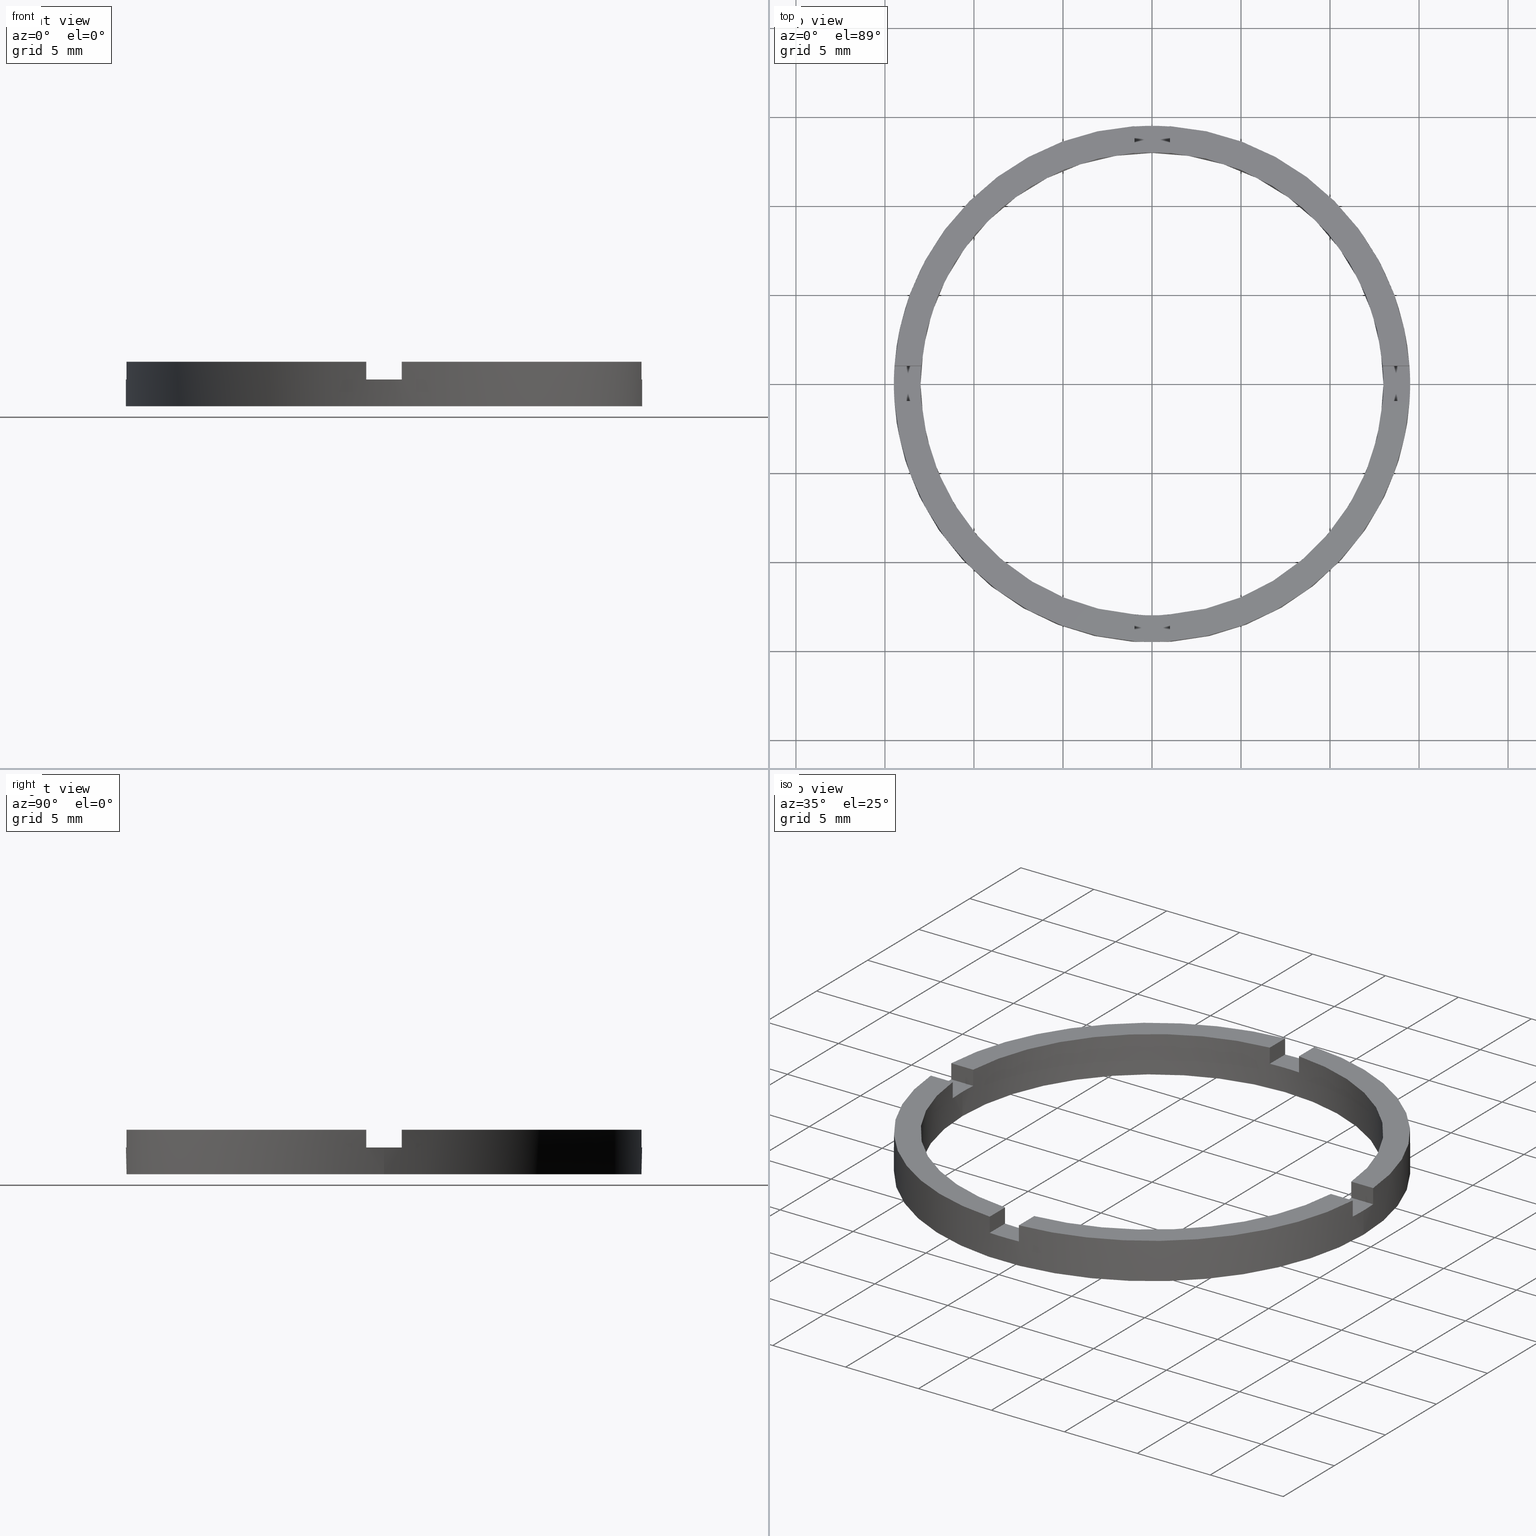
[diagram: canonical four-view strip — front | top / right | iso, engineering-drawing reading convention]
A machine part, canonical four-view strip (front | top / right | iso — engineering-drawing reading convention). The complete STEP part file that produces these views, byte-faithful:
ISO-10303-21;
HEADER;
FILE_DESCRIPTION (( 'STEP AP203' ),
    '1' );
FILE_NAME ('514065.step',
    '2024-12-26T02:34:13',
    ( 'MSI' ),
    ( '' ),
    'SwSTEP 2.0',
    'SolidWorks 2020',
    '' );
FILE_SCHEMA (( 'CONFIG_CONTROL_DESIGN' ));
ENDSEC;

DATA;
#1 = LINE ( 'NONE', #370, #241 ) ;
#2 = DIRECTION ( 'NONE',  ( 1.000000000000000000, 0.000000000000000000, 0.000000000000000000 ) ) ;
#3 = ORIENTED_EDGE ( 'NONE', *, *, #297, .T. ) ;
#4 = PRODUCT_DEFINITION_FORMATION_WITH_SPECIFIED_SOURCE ( '�κ�', '', #56, .NOT_KNOWN. ) ;
#5 = ORIENTED_EDGE ( 'NONE', *, *, #67, .T. ) ;
#6 = ORIENTED_EDGE ( 'NONE', *, *, #137, .T. ) ;
#7 = ORIENTED_EDGE ( 'NONE', *, *, #451, .F. ) ;
#8 = CARTESIAN_POINT ( 'NONE',  ( 0.000000000000000000, 0.000000000000000000, 0.000000000000000000 ) ) ;
#9 = EDGE_CURVE ( 'NONE', #722, #654, #1, .T. ) ;
#10 = ORIENTED_EDGE ( 'NONE', *, *, #697, .T. ) ;
#11 = ORIENTED_EDGE ( 'NONE', *, *, #540, .T. ) ;
#12 = ADVANCED_FACE ( 'NONE', ( #767 ), #36, .F. ) ;
#13 = ORIENTED_EDGE ( 'NONE', *, *, #627, .F. ) ;
#14 = CARTESIAN_POINT ( 'NONE',  ( 0.9999999999999751310, 4.500000000000000888, 1.500000000000000000 ) ) ;
#15 = VERTEX_POINT ( 'NONE', #617 ) ;
#16 = CARTESIAN_POINT ( 'NONE',  ( -12.96148139681571898, -1.000000000000022427, 1.500000000000000000 ) ) ;
#17 = VERTEX_POINT ( 'NONE', #523 ) ;
#18 = DIRECTION ( 'NONE',  ( 1.000000000000000000, 0.000000000000000000, 0.000000000000000000 ) ) ;
#19 = VERTEX_POINT ( 'NONE', #620 ) ;
#20 = ADVANCED_FACE ( 'NONE', ( #505 ), #211, .T. ) ;
#21 = CARTESIAN_POINT ( 'NONE',  ( 13.00000000000000178, 1.592040838891559293E-15, 1.500000000000000000 ) ) ;
#22 = DIRECTION ( 'NONE',  ( 1.000000000000000000, 0.000000000000000000, -0.000000000000000000 ) ) ;
#23 = CARTESIAN_POINT ( 'NONE',  ( -1.000000000000024869, 4.500000000000000888, 1.500000000000000000 ) ) ;
#24 = FACE_OUTER_BOUND ( 'NONE', #666, .T. ) ;
#25 = DIRECTION ( 'NONE',  ( 0.000000000000000000, 0.000000000000000000, -1.000000000000000000 ) ) ;
#26 = VECTOR ( 'NONE', #716, 1000.000000000000000 ) ;
#27 =( NAMED_UNIT ( * ) SI_UNIT ( $, .STERADIAN. ) SOLID_ANGLE_UNIT ( ) );
#28 = DIRECTION ( 'NONE',  ( -0.000000000000000000, -1.000000000000000000, -0.000000000000000000 ) ) ;
#29 = LINE ( 'NONE', #588, #551 ) ;
#30 = VECTOR ( 'NONE', #607, 1000.000000000000000 ) ;
#31 = CIRCLE ( 'NONE', #648, 14.50000000000000000 ) ;
#32 = APPLICATION_PROTOCOL_DEFINITION ( 'international standard', 'config_control_design', 1994, #207 ) ;
#33 = CARTESIAN_POINT ( 'NONE',  ( -12.96148139681572253, 0.9999999999999776845, 2.500000000000000000 ) ) ;
#34 = LINE ( 'NONE', #182, #559 ) ;
#35 = FACE_OUTER_BOUND ( 'NONE', #168, .T. ) ;
#36 = PLANE ( 'NONE',  #331 ) ;
#37 = AXIS2_PLACEMENT_3D ( 'NONE', #550, #91, #2 ) ;
#38 = SECURITY_CLASSIFICATION_LEVEL ( 'unclassified' ) ;
#39 = LINE ( 'NONE', #544, #294 ) ;
#40 = CARTESIAN_POINT ( 'NONE',  ( 0.000000000000000000, 0.000000000000000000, 1.500000000000000000 ) ) ;
#41 = DIRECTION ( 'NONE',  ( 0.000000000000000000, 0.000000000000000000, 1.000000000000000000 ) ) ;
#42 = LINE ( 'NONE', #51, #574 ) ;
#43 = VECTOR ( 'NONE', #28, 1000.000000000000000 ) ;
#44 = VECTOR ( 'NONE', #604, 1000.000000000000000 ) ;
#45 = CARTESIAN_POINT ( 'NONE',  ( 0.000000000000000000, 0.000000000000000000, 0.000000000000000000 ) ) ;
#46 = EDGE_CURVE ( 'NONE', #165, #382, #257, .T. ) ;
#47 = LINE ( 'NONE', #63, #295 ) ;
#48 = DIRECTION ( 'NONE',  ( 0.000000000000000000, 0.000000000000000000, 1.000000000000000000 ) ) ;
#49 = CIRCLE ( 'NONE', #412, 13.00000000000000178 ) ;
#50 = DIRECTION ( 'NONE',  ( 1.000000000000000000, 0.000000000000000000, -0.000000000000000000 ) ) ;
#51 = CARTESIAN_POINT ( 'NONE',  ( -1.000000000000164313, -4.500000000000181188, 1.500000000000000000 ) ) ;
#52 = DIRECTION ( 'NONE',  ( 1.000000000000000000, 0.000000000000000000, -0.000000000000000000 ) ) ;
#53 = LINE ( 'NONE', #474, #26 ) ;
#54 = VECTOR ( 'NONE', #364, 1000.000000000000000 ) ;
#55 = LINE ( 'NONE', #220, #304 ) ;
#56 = PRODUCT ( '514065', '514065', '', ( #682 ) ) ;
#57 = EDGE_CURVE ( 'NONE', #698, #108, #237, .T. ) ;
#58 = AXIS2_PLACEMENT_3D ( 'NONE', #40, #315, #323 ) ;
#59 = CARTESIAN_POINT ( 'NONE',  ( 0.000000000000000000, 0.000000000000000000, 2.500000000000000000 ) ) ;
#60 = DIRECTION ( 'NONE',  ( 1.000000000000000000, 0.000000000000000000, 0.000000000000000000 ) ) ;
#61 = AXIS2_PLACEMENT_3D ( 'NONE', #59, #62, #332 ) ;
#62 = DIRECTION ( 'NONE',  ( 0.000000000000000000, 0.000000000000000000, 1.000000000000000000 ) ) ;
#63 = CARTESIAN_POINT ( 'NONE',  ( 0.9999999999998356870, -4.500000000000181188, 1.500000000000000000 ) ) ;
#64 = DIRECTION ( 'NONE',  ( 1.000000000000000000, 0.000000000000000000, 0.000000000000000000 ) ) ;
#65 = ADVANCED_FACE ( 'NONE', ( #779 ), #251, .T. ) ;
#66 = CARTESIAN_POINT ( 'NONE',  ( -4.500000000000186517, 0.9999999999999790168, 2.500000000000000000 ) ) ;
#67 = EDGE_CURVE ( 'NONE', #178, #695, #503, .T. ) ;
#68 = EDGE_CURVE ( 'NONE', #654, #260, #526, .T. ) ;
#69 = DIRECTION ( 'NONE',  ( 1.734723475976807094E-16, -1.000000000000000000, 0.000000000000000000 ) ) ;
#70 = DIRECTION ( 'NONE',  ( 1.000000000000000000, 0.000000000000000000, 0.000000000000000000 ) ) ;
#71 = ADVANCED_FACE ( 'NONE', ( #530, #768 ), #317, .F. ) ;
#72 = DIRECTION ( 'NONE',  ( -0.000000000000000000, 0.000000000000000000, 1.000000000000000000 ) ) ;
#73 = EDGE_CURVE ( 'NONE', #688, #19, #235, .T. ) ;
#74 = DIRECTION ( 'NONE',  ( 1.000000000000000000, -0.000000000000000000, 0.000000000000000000 ) ) ;
#75 = APPROVAL_ROLE ( '' ) ;
#76 = APPLICATION_CONTEXT ( 'configuration controlled 3d designs of mechanical parts and assemblies' ) ;
#77 = PLANE ( 'NONE',  #349 ) ;
#78 = CARTESIAN_POINT ( 'NONE',  ( 0.9999999999999751310, 14.46547614148943417, 2.500000000000000000 ) ) ;
#79 = DIRECTION ( 'NONE',  ( -0.000000000000000000, -0.000000000000000000, -1.000000000000000000 ) ) ;
#80 = PERSON_AND_ORGANIZATION ( #287, #144 ) ;
#81 = AXIS2_PLACEMENT_3D ( 'NONE', #306, #191, #341 ) ;
#82 = DIRECTION ( 'NONE',  ( 0.000000000000000000, 0.000000000000000000, 1.000000000000000000 ) ) ;
#83 = CC_DESIGN_APPROVAL ( #757, ( #630 ) ) ;
#84 = AXIS2_PLACEMENT_3D ( 'NONE', #498, #487, #236 ) ;
#85 = EDGE_CURVE ( 'NONE', #140, #134, #501, .T. ) ;
#86 = EDGE_CURVE ( 'NONE', #197, #382, #776, .T. ) ;
#87 = DIRECTION ( 'NONE',  ( 0.000000000000000000, 0.000000000000000000, 1.000000000000000000 ) ) ;
#88 = PERSON_AND_ORGANIZATION ( #287, #144 ) ;
#89 = LOCAL_TIME ( 10, 34, 13.00000000000000000, #613 ) ;
#90 = CARTESIAN_POINT ( 'NONE',  ( 0.000000000000000000, 0.000000000000000000, 1.500000000000000000 ) ) ;
#91 = DIRECTION ( 'NONE',  ( 0.000000000000000000, 0.000000000000000000, 1.000000000000000000 ) ) ;
#92 = PLANE ( 'NONE',  #313 ) ;
#93 = CARTESIAN_POINT ( 'NONE',  ( -1.000000000000024869, 12.96148139681571898, 2.500000000000000000 ) ) ;
#94 = PRODUCT_DEFINITION_SHAPE ( 'NONE', 'NONE',  #334 ) ;
#95 = APPROVAL_DATE_TIME ( #342, #252 ) ;
#96 = DIRECTION ( 'NONE',  ( 1.000000000000000000, 4.336808689942017736E-17, 0.000000000000000000 ) ) ;
#97 = DIRECTION ( 'NONE',  ( -1.301042606982605321E-16, 1.000000000000000000, -0.000000000000000000 ) ) ;
#98 = PLANE ( 'NONE',  #81 ) ;
#99 = EDGE_CURVE ( 'NONE', #636, #466, #771, .T. ) ;
#100 = DIRECTION ( 'NONE',  ( -1.000000000000000000, -1.734723475976807094E-16, 0.000000000000000000 ) ) ;
#101 = CARTESIAN_POINT ( 'NONE',  ( 14.50000000000000000, 1.775737858763662015E-15, 1.500000000000000000 ) ) ;
#102 = AXIS2_PLACEMENT_3D ( 'NONE', #314, #417, #606 ) ;
#103 = DIRECTION ( 'NONE',  ( 0.000000000000000000, 0.000000000000000000, 1.000000000000000000 ) ) ;
#104 = EDGE_CURVE ( 'NONE', #17, #442, #180, .T. ) ;
#105 = CARTESIAN_POINT ( 'NONE',  ( 0.9999999999998366862, -12.96148139681573497, 2.500000000000000000 ) ) ;
#106 = EDGE_CURVE ( 'NONE', #688, #466, #192, .T. ) ;
#107 = CARTESIAN_POINT ( 'NONE',  ( 0.9999999999998356870, -4.500000000000181188, 2.500000000000000000 ) ) ;
#108 = VERTEX_POINT ( 'NONE', #324 ) ;
#109 = CC_DESIGN_APPROVAL ( #252, ( #4 ) ) ;
#110 = DIRECTION ( 'NONE',  ( 1.000000000000000000, 0.000000000000000000, 0.000000000000000000 ) ) ;
#111 = CARTESIAN_POINT ( 'NONE',  ( -4.500000000000186517, 0.9999999999999790168, 1.500000000000000000 ) ) ;
#112 = AXIS2_PLACEMENT_3D ( 'NONE', #300, #204, #742 ) ;
#113 = ORIENTED_EDGE ( 'NONE', *, *, #9, .T. ) ;
#114 = VERTEX_POINT ( 'NONE', #562 ) ;
#115 = APPROVAL_DATE_TIME ( #124, #480 ) ;
#116 = ORIENTED_EDGE ( 'NONE', *, *, #320, .F. ) ;
#117 = VERTEX_POINT ( 'NONE', #702 ) ;
#118 = CIRCLE ( 'NONE', #275, 14.50000000000000000 ) ;
#119 = ORIENTED_EDGE ( 'NONE', *, *, #362, .F. ) ;
#120 = CARTESIAN_POINT ( 'NONE',  ( 0.9999999999999751310, 12.96148139681572431, 2.500000000000000000 ) ) ;
#121 = AXIS2_PLACEMENT_3D ( 'NONE', #348, #72, #321 ) ;
#122 = ORIENTED_EDGE ( 'NONE', *, *, #621, .T. ) ;
#123 = ORIENTED_EDGE ( 'NONE', *, *, #734, .F. ) ;
#124 = DATE_AND_TIME ( #639, #372 ) ;
#125 = ORIENTED_EDGE ( 'NONE', *, *, #228, .F. ) ;
#126 = EDGE_LOOP ( 'NONE', ( #136, #421, #6, #271, #434, #657, #189, #132, #450, #13, #538, #532 ) ) ;
#127 = CARTESIAN_POINT ( 'NONE',  ( 0.000000000000000000, 0.000000000000000000, 2.500000000000000000 ) ) ;
#128 = ORIENTED_EDGE ( 'NONE', *, *, #594, .T. ) ;
#129 = ORIENTED_EDGE ( 'NONE', *, *, #399, .T. ) ;
#130 = CC_DESIGN_DATE_AND_TIME_ASSIGNMENT ( #709, #518, ( #630 ) ) ;
#131 = CARTESIAN_POINT ( 'NONE',  ( -12.96148139681571898, -1.000000000000022427, 2.500000000000000000 ) ) ;
#132 = ORIENTED_EDGE ( 'NONE', *, *, #67, .F. ) ;
#133 = LOCAL_TIME ( 10, 34, 13.00000000000000000, #135 ) ;
#134 = VERTEX_POINT ( 'NONE', #352 ) ;
#135 = COORDINATED_UNIVERSAL_TIME_OFFSET ( 8, 0, .AHEAD. ) ;
#136 = ORIENTED_EDGE ( 'NONE', *, *, #46, .F. ) ;
#137 = EDGE_CURVE ( 'NONE', #139, #134, #687, .T. ) ;
#138 = PERSON_AND_ORGANIZATION ( #287, #144 ) ;
#139 = VERTEX_POINT ( 'NONE', #361 ) ;
#140 = VERTEX_POINT ( 'NONE', #443 ) ;
#141 = CARTESIAN_POINT ( 'NONE',  ( 14.50000000000000000, 1.775737858763662015E-15, 0.000000000000000000 ) ) ;
#142 = COORDINATED_UNIVERSAL_TIME_OFFSET ( 8, 0, .AHEAD. ) ;
#143 = EDGE_LOOP ( 'NONE', ( #10, #711, #420, #384 ) ) ;
#144 = ORGANIZATION ( 'δָ��', 'δָ��', '' ) ;
#145 = VERTEX_POINT ( 'NONE', #612 ) ;
#146 = VERTEX_POINT ( 'NONE', #453 ) ;
#147 = ORIENTED_EDGE ( 'NONE', *, *, #85, .F. ) ;
#148 = ORIENTED_EDGE ( 'NONE', *, *, #99, .T. ) ;
#149 = ORIENTED_EDGE ( 'NONE', *, *, #201, .T. ) ;
#150 = ORIENTED_EDGE ( 'NONE', *, *, #585, .F. ) ;
#151 = DIRECTION ( 'NONE',  ( 1.000000000000000000, 1.734723475976807094E-16, -0.000000000000000000 ) ) ;
#152 = ORIENTED_EDGE ( 'NONE', *, *, #286, .F. ) ;
#153 = ORIENTED_EDGE ( 'NONE', *, *, #451, .T. ) ;
#154 = ORIENTED_EDGE ( 'NONE', *, *, #169, .F. ) ;
#155 = EDGE_LOOP ( 'NONE', ( #404, #149, #153, #152, #119, #129 ) ) ;
#156 = FACE_OUTER_BOUND ( 'NONE', #537, .T. ) ;
#157 = ORIENTED_EDGE ( 'NONE', *, *, #104, .T. ) ;
#158 = EDGE_CURVE ( 'NONE', #117, #645, #449, .T. ) ;
#159 = ORIENTED_EDGE ( 'NONE', *, *, #201, .F. ) ;
#160 = VERTEX_POINT ( 'NONE', #608 ) ;
#161 = ORIENTED_EDGE ( 'NONE', *, *, #399, .F. ) ;
#162 = VECTOR ( 'NONE', #41, 1000.000000000000000 ) ;
#163 = ORIENTED_EDGE ( 'NONE', *, *, #621, .F. ) ;
#164 = ORIENTED_EDGE ( 'NONE', *, *, #723, .F. ) ;
#165 = VERTEX_POINT ( 'NONE', #101 ) ;
#166 = ORIENTED_EDGE ( 'NONE', *, *, #594, .F. ) ;
#167 = ORIENTED_EDGE ( 'NONE', *, *, #462, .F. ) ;
#168 = EDGE_LOOP ( 'NONE', ( #232, #651, #265, #649 ) ) ;
#169 = EDGE_CURVE ( 'NONE', #531, #678, #717, .T. ) ;
#170 = ORIENTED_EDGE ( 'NONE', *, *, #286, .T. ) ;
#171 = ORIENTED_EDGE ( 'NONE', *, *, #367, .T. ) ;
#172 = EDGE_LOOP ( 'NONE', ( #708, #430, #681, #485, #226, #157 ) ) ;
#173 = AXIS2_PLACEMENT_3D ( 'NONE', #418, #493, #781 ) ;
#174 = CARTESIAN_POINT ( 'NONE',  ( 0.000000000000000000, 0.000000000000000000, 2.500000000000000000 ) ) ;
#175 = CLOSED_SHELL ( 'NONE', ( #343, #303, #405, #659, #751, #548, #71, #65, #250, #600, #339, #243, #311, #635, #20, #195, #307, #203, #433, #12, #186 ) ) ;
#176 = ORIENTED_EDGE ( 'NONE', *, *, #482, .F. ) ;
#177 = ORIENTED_EDGE ( 'NONE', *, *, #234, .T. ) ;
#178 = VERTEX_POINT ( 'NONE', #328 ) ;
#179 = CC_DESIGN_PERSON_AND_ORGANIZATION_ASSIGNMENT ( #335, #266, ( #630 ) ) ;
#180 = LINE ( 'NONE', #213, #446 ) ;
#181 = VERTEX_POINT ( 'NONE', #586 ) ;
#182 = CARTESIAN_POINT ( 'NONE',  ( -1.000000000000163203, -12.96148139681570832, 2.500000000000000000 ) ) ;
#183 = DIRECTION ( 'NONE',  ( -0.000000000000000000, -0.000000000000000000, -1.000000000000000000 ) ) ;
#184 = ORIENTED_EDGE ( 'NONE', *, *, #782, .T. ) ;
#185 = APPROVAL_DATE_TIME ( #661, #757 ) ;
#186 = ADVANCED_FACE ( 'NONE', ( #444 ), #223, .T. ) ;
#187 = SHAPE_DEFINITION_REPRESENTATION ( #94, #360 ) ;
#188 = PLANE ( 'NONE',  #603 ) ;
#189 = ORIENTED_EDGE ( 'NONE', *, *, #655, .T. ) ;
#190 = CARTESIAN_POINT ( 'NONE',  ( 0.000000000000000000, 0.000000000000000000, 1.500000000000000000 ) ) ;
#191 = DIRECTION ( 'NONE',  ( -4.336808689942017736E-17, 1.000000000000000000, 0.000000000000000000 ) ) ;
#192 = CIRCLE ( 'NONE', #504, 13.00000000000000178 ) ;
#193 = VERTEX_POINT ( 'NONE', #467 ) ;
#194 = CC_DESIGN_APPROVAL ( #480, ( #334 ) ) ;
#195 = ADVANCED_FACE ( 'NONE', ( #156 ), #98, .F. ) ;
#196 = VECTOR ( 'NONE', #199, 1000.000000000000000 ) ;
#197 = VERTEX_POINT ( 'NONE', #245 ) ;
#198 = CARTESIAN_POINT ( 'NONE',  ( -12.96148139681572253, 0.9999999999999776845, 2.500000000000000000 ) ) ;
#199 = DIRECTION ( 'NONE',  ( -0.000000000000000000, -1.000000000000000000, -0.000000000000000000 ) ) ;
#200 = EDGE_LOOP ( 'NONE', ( #699, #11, #269, #677 ) ) ;
#201 = EDGE_CURVE ( 'NONE', #165, #423, #413, .T. ) ;
#202 = CIRCLE ( 'NONE', #354, 13.00000000000000178 ) ;
#203 = ADVANCED_FACE ( 'NONE', ( #685 ), #92, .T. ) ;
#204 = DIRECTION ( 'NONE',  ( 0.000000000000000000, 0.000000000000000000, 1.000000000000000000 ) ) ;
#205 = DIRECTION ( 'NONE',  ( -0.000000000000000000, -0.000000000000000000, -1.000000000000000000 ) ) ;
#206 = AXIS2_PLACEMENT_3D ( 'NONE', #326, #629, #283 ) ;
#207 = APPLICATION_CONTEXT ( 'configuration controlled 3d designs of mechanical parts and assemblies' ) ;
#208 = CARTESIAN_POINT ( 'NONE',  ( 4.499999999999995559, 0.9999999999998402389, 1.500000000000000000 ) ) ;
#209 = AXIS2_PLACEMENT_3D ( 'NONE', #393, #336, #543 ) ;
#210 = DESIGN_CONTEXT ( 'detailed design', #76, 'design' ) ;
#211 = PLANE ( 'NONE',  #121 ) ;
#212 = CARTESIAN_POINT ( 'NONE',  ( 0.000000000000000000, 0.000000000000000000, 2.500000000000000000 ) ) ;
#213 = CARTESIAN_POINT ( 'NONE',  ( -4.500000000000186517, 0.9999999999999790168, 1.500000000000000000 ) ) ;
#214 = AXIS2_PLACEMENT_3D ( 'NONE', #520, #579, #665 ) ;
#215 = FACE_OUTER_BOUND ( 'NONE', #172, .T. ) ;
#216 = ORIENTED_EDGE ( 'NONE', *, *, #9, .F. ) ;
#217 = VECTOR ( 'NONE', #713, 1000.000000000000000 ) ;
#218 = APPROVAL_STATUS ( 'not_yet_approved' ) ;
#219 = EDGE_CURVE ( 'NONE', #442, #160, #752, .T. ) ;
#220 = CARTESIAN_POINT ( 'NONE',  ( -4.500000000000186517, -1.000000000000021094, 2.500000000000000000 ) ) ;
#221 = CIRCLE ( 'NONE', #753, 13.00000000000000178 ) ;
#222 = CARTESIAN_POINT ( 'NONE',  ( 0.9999999999998366862, -12.96148139681573497, 1.500000000000000000 ) ) ;
#223 = PLANE ( 'NONE',  #724 ) ;
#224 = CYLINDRICAL_SURFACE ( 'NONE', #238, 13.00000000000000178 ) ;
#225 = CIRCLE ( 'NONE', #541, 13.00000000000000178 ) ;
#226 = ORIENTED_EDGE ( 'NONE', *, *, #770, .F. ) ;
#227 = DIRECTION ( 'NONE',  ( -1.000000000000000000, 0.000000000000000000, 0.000000000000000000 ) ) ;
#228 = EDGE_CURVE ( 'NONE', #117, #688, #473, .T. ) ;
#229 = CIRCLE ( 'NONE', #58, 14.50000000000000000 ) ;
#230 = CARTESIAN_POINT ( 'NONE',  ( 0.000000000000000000, 0.000000000000000000, 2.500000000000000000 ) ) ;
#231 = VECTOR ( 'NONE', #694, 1000.000000000000000 ) ;
#232 = ORIENTED_EDGE ( 'NONE', *, *, #581, .F. ) ;
#233 = LINE ( 'NONE', #208, #497 ) ;
#234 = EDGE_CURVE ( 'NONE', #636, #678, #225, .T. ) ;
#235 = LINE ( 'NONE', #347, #512 ) ;
#236 = DIRECTION ( 'NONE',  ( 1.000000000000000000, 0.000000000000000000, -0.000000000000000000 ) ) ;
#237 = LINE ( 'NONE', #107, #248 ) ;
#238 = AXIS2_PLACEMENT_3D ( 'NONE', #301, #79, #227 ) ;
#239 = DIRECTION ( 'NONE',  ( -0.000000000000000000, -0.000000000000000000, -1.000000000000000000 ) ) ;
#240 = VERTEX_POINT ( 'NONE', #396 ) ;
#241 = VECTOR ( 'NONE', #584, 1000.000000000000000 ) ;
#242 = CARTESIAN_POINT ( 'NONE',  ( 0.9999999999998356870, -4.500000000000181188, 1.500000000000000000 ) ) ;
#243 = ADVANCED_FACE ( 'NONE', ( #215 ), #280, .T. ) ;
#244 = DIRECTION ( 'NONE',  ( 0.000000000000000000, 0.000000000000000000, 1.000000000000000000 ) ) ;
#245 = CARTESIAN_POINT ( 'NONE',  ( -14.50000000000000000, 0.000000000000000000, 0.000000000000000000 ) ) ;
#246 = EDGE_LOOP ( 'NONE', ( #216, #170, #426, #750, #755, #177, #719, #642, #486, #721, #424, #381 ) ) ;
#247 = EDGE_CURVE ( 'NONE', #114, #678, #454, .T. ) ;
#248 = VECTOR ( 'NONE', #517, 1000.000000000000000 ) ;
#249 = AXIS2_PLACEMENT_3D ( 'NONE', #127, #565, #258 ) ;
#250 = ADVANCED_FACE ( 'NONE', ( #457 ), #224, .F. ) ;
#251 = CYLINDRICAL_SURFACE ( 'NONE', #249, 14.50000000000000000 ) ;
#252 = APPROVAL ( #359, 'δָ��' ) ;
#253 = CARTESIAN_POINT ( 'NONE',  ( -1.000000000000162981, -14.46547614148942174, 2.500000000000000000 ) ) ;
#254 = CARTESIAN_POINT ( 'NONE',  ( 0.000000000000000000, 0.000000000000000000, 2.500000000000000000 ) ) ;
#255 = ORIENTED_EDGE ( 'NONE', *, *, #104, .F. ) ;
#256 = EDGE_CURVE ( 'NONE', #146, #260, #733, .T. ) ;
#257 = LINE ( 'NONE', #357, #521 ) ;
#258 = DIRECTION ( 'NONE',  ( -1.000000000000000000, 0.000000000000000000, 0.000000000000000000 ) ) ;
#259 = ORIENTED_EDGE ( 'NONE', *, *, #73, .T. ) ;
#260 = VERTEX_POINT ( 'NONE', #553 ) ;
#261 =( NAMED_UNIT ( * ) PLANE_ANGLE_UNIT ( ) SI_UNIT ( $, .RADIAN. ) );
#262 = CARTESIAN_POINT ( 'NONE',  ( 0.9999999999999751310, 12.96148139681572431, 2.500000000000000000 ) ) ;
#263 = DIRECTION ( 'NONE',  ( 0.000000000000000000, 0.000000000000000000, 1.000000000000000000 ) ) ;
#264 = ORIENTED_EDGE ( 'NONE', *, *, #85, .T. ) ;
#265 = ORIENTED_EDGE ( 'NONE', *, *, #499, .T. ) ;
#266 = PERSON_AND_ORGANIZATION_ROLE ( 'classification_officer' ) ;
#267 = ORIENTED_EDGE ( 'NONE', *, *, #367, .F. ) ;
#268 = DIRECTION ( 'NONE',  ( 0.000000000000000000, 0.000000000000000000, 1.000000000000000000 ) ) ;
#269 = ORIENTED_EDGE ( 'NONE', *, *, #782, .F. ) ;
#270 = EDGE_CURVE ( 'NONE', #698, #778, #475, .T. ) ;
#271 = ORIENTED_EDGE ( 'NONE', *, *, #344, .F. ) ;
#272 = DIRECTION ( 'NONE',  ( 1.000000000000000000, 0.000000000000000000, 0.000000000000000000 ) ) ;
#273 = ORIENTED_EDGE ( 'NONE', *, *, #344, .T. ) ;
#274 = DIRECTION ( 'NONE',  ( 1.000000000000000000, 1.734723475976807094E-16, -0.000000000000000000 ) ) ;
#275 = AXIS2_PLACEMENT_3D ( 'NONE', #754, #673, #110 ) ;
#276 = CARTESIAN_POINT ( 'NONE',  ( 4.499999999999995559, -1.000000000000159872, 1.500000000000000000 ) ) ;
#277 = CARTESIAN_POINT ( 'NONE',  ( 0.000000000000000000, 0.000000000000000000, 1.500000000000000000 ) ) ;
#278 = EDGE_CURVE ( 'NONE', #146, #653, #221, .T. ) ;
#279 = LINE ( 'NONE', #105, #290 ) ;
#280 = PLANE ( 'NONE',  #571 ) ;
#281 = FACE_OUTER_BOUND ( 'NONE', #445, .T. ) ;
#282 = VECTOR ( 'NONE', #458, 1000.000000000000000 ) ;
#283 = DIRECTION ( 'NONE',  ( 1.000000000000000000, 0.000000000000000000, -0.000000000000000000 ) ) ;
#284 = FACE_OUTER_BOUND ( 'NONE', #690, .T. ) ;
#285 = DIRECTION ( 'NONE',  ( 1.000000000000000000, 0.000000000000000000, -0.000000000000000000 ) ) ;
#286 = EDGE_CURVE ( 'NONE', #722, #19, #202, .T. ) ;
#287 = PERSON ( 'δָ��', 'δָ��', 'δָ��', ('δָ��'), ('δָ��'), ('δָ��') ) ;
#288 = CIRCLE ( 'NONE', #358, 13.00000000000000178 ) ;
#289 = AXIS2_PLACEMENT_3D ( 'NONE', #746, #602, #64 ) ;
#290 = VECTOR ( 'NONE', #205, 1000.000000000000000 ) ;
#291 = LINE ( 'NONE', #441, #282 ) ;
#292 = CIRCLE ( 'NONE', #112, 14.50000000000000000 ) ;
#293 = LINE ( 'NONE', #253, #44 ) ;
#294 = VECTOR ( 'NONE', #633, 1000.000000000000000 ) ;
#295 = VECTOR ( 'NONE', #97, 1000.000000000000000 ) ;
#296 = DIRECTION ( 'NONE',  ( 0.000000000000000000, 0.000000000000000000, 1.000000000000000000 ) ) ;
#297 = EDGE_CURVE ( 'NONE', #459, #671, #739, .T. ) ;
#298 = CIRCLE ( 'NONE', #37, 14.50000000000000000 ) ;
#299 = VECTOR ( 'NONE', #710, 1000.000000000000000 ) ;
#300 = CARTESIAN_POINT ( 'NONE',  ( 0.000000000000000000, 0.000000000000000000, 1.500000000000000000 ) ) ;
#301 = CARTESIAN_POINT ( 'NONE',  ( 0.000000000000000000, 0.000000000000000000, 2.500000000000000000 ) ) ;
#302 = LINE ( 'NONE', #756, #43 ) ;
#303 = ADVANCED_FACE ( 'NONE', ( #477 ), #468, .T. ) ;
#304 = VECTOR ( 'NONE', #274, 1000.000000000000000 ) ;
#305 = DIRECTION ( 'NONE',  ( 1.000000000000000000, 1.301042606982605321E-16, 0.000000000000000000 ) ) ;
#306 = CARTESIAN_POINT ( 'NONE',  ( 4.499999999999995559, 0.9999999999998402389, 1.500000000000000000 ) ) ;
#307 = ADVANCED_FACE ( 'NONE', ( #461 ), #638, .F. ) ;
#308 = DIRECTION ( 'NONE',  ( 4.336808689942017736E-17, -1.000000000000000000, 0.000000000000000000 ) ) ;
#309 = AXIS2_PLACEMENT_3D ( 'NONE', #337, #592, #346 ) ;
#310 = DIRECTION ( 'NONE',  ( 1.301042606982605321E-16, -1.000000000000000000, 0.000000000000000000 ) ) ;
#311 = ADVANCED_FACE ( 'NONE', ( #745 ), #188, .F. ) ;
#312 = CARTESIAN_POINT ( 'NONE',  ( 0.000000000000000000, 0.000000000000000000, 1.500000000000000000 ) ) ;
#313 = AXIS2_PLACEMENT_3D ( 'NONE', #407, #87, #285 ) ;
#314 = CARTESIAN_POINT ( 'NONE',  ( 0.000000000000000000, 0.000000000000000000, 1.500000000000000000 ) ) ;
#315 = DIRECTION ( 'NONE',  ( 0.000000000000000000, 0.000000000000000000, 1.000000000000000000 ) ) ;
#316 = DIRECTION ( 'NONE',  ( -0.000000000000000000, -0.000000000000000000, -1.000000000000000000 ) ) ;
#317 = PLANE ( 'NONE',  #464 ) ;
#318 = DIRECTION ( 'NONE',  ( -1.000000000000000000, -1.734723475976807094E-16, 0.000000000000000000 ) ) ;
#319 = DIRECTION ( 'NONE',  ( 1.000000000000000000, 0.000000000000000000, -0.000000000000000000 ) ) ;
#320 = EDGE_CURVE ( 'NONE', #636, #240, #740, .T. ) ;
#321 = DIRECTION ( 'NONE',  ( 1.000000000000000000, 0.000000000000000000, 0.000000000000000000 ) ) ;
#322 = PERSON_AND_ORGANIZATION_ROLE ( 'creator' ) ;
#323 = DIRECTION ( 'NONE',  ( 1.000000000000000000, 0.000000000000000000, 0.000000000000000000 ) ) ;
#324 = CARTESIAN_POINT ( 'NONE',  ( 0.9999999999998366862, -12.96148139681573497, 2.500000000000000000 ) ) ;
#325 = CARTESIAN_POINT ( 'NONE',  ( -1.000000000000162981, -14.46547614148942174, 1.500000000000000000 ) ) ;
#326 = CARTESIAN_POINT ( 'NONE',  ( 0.000000000000000000, 0.000000000000000000, 2.500000000000000000 ) ) ;
#327 = DIRECTION ( 'NONE',  ( 0.000000000000000000, -0.000000000000000000, 1.000000000000000000 ) ) ;
#328 = CARTESIAN_POINT ( 'NONE',  ( -14.46547614148943062, -1.000000000000022871, 2.500000000000000000 ) ) ;
#329 = AXIS2_PLACEMENT_3D ( 'NONE', #774, #69, #748 ) ;
#330 = DIRECTION ( 'NONE',  ( 0.000000000000000000, 0.000000000000000000, 1.000000000000000000 ) ) ;
#331 = AXIS2_PLACEMENT_3D ( 'NONE', #366, #74, #25 ) ;
#332 = DIRECTION ( 'NONE',  ( 1.000000000000000000, 0.000000000000000000, 0.000000000000000000 ) ) ;
#333 = PLANE ( 'NONE',  #598 ) ;
#334 = PRODUCT_DEFINITION ( 'δ֪', '', #4, #210 ) ;
#335 = PERSON_AND_ORGANIZATION ( #287, #144 ) ;
#336 = DIRECTION ( 'NONE',  ( -0.000000000000000000, -0.000000000000000000, -1.000000000000000000 ) ) ;
#337 = CARTESIAN_POINT ( 'NONE',  ( 0.000000000000000000, 0.000000000000000000, 1.500000000000000000 ) ) ;
#338 = EDGE_CURVE ( 'NONE', #114, #371, #463, .T. ) ;
#339 = ADVANCED_FACE ( 'NONE', ( #744 ), #575, .F. ) ;
#340 = CARTESIAN_POINT ( 'NONE',  ( 12.96148139681570832, -1.000000000000159428, 1.500000000000000000 ) ) ;
#341 = DIRECTION ( 'NONE',  ( -1.000000000000000000, -4.336808689942017736E-17, 0.000000000000000000 ) ) ;
#342 = DATE_AND_TIME ( #345, #628 ) ;
#343 = ADVANCED_FACE ( 'NONE', ( #484 ), #731, .F. ) ;
#344 = EDGE_CURVE ( 'NONE', #698, #134, #735, .T. ) ;
#345 = CALENDAR_DATE ( 2024, 26, 12 ) ;
#346 = DIRECTION ( 'NONE',  ( 1.000000000000000000, 0.000000000000000000, 0.000000000000000000 ) ) ;
#347 = CARTESIAN_POINT ( 'NONE',  ( 12.96148139681573497, 0.9999999999998406830, 2.500000000000000000 ) ) ;
#348 = CARTESIAN_POINT ( 'NONE',  ( 0.000000000000000000, 0.000000000000000000, 1.500000000000000000 ) ) ;
#349 = AXIS2_PLACEMENT_3D ( 'NONE', #212, #268, #22 ) ;
#350 = CARTESIAN_POINT ( 'NONE',  ( -14.46547614148943062, -1.000000000000022871, 2.500000000000000000 ) ) ;
#351 = DIRECTION ( 'NONE',  ( 0.000000000000000000, 0.000000000000000000, 1.000000000000000000 ) ) ;
#352 = CARTESIAN_POINT ( 'NONE',  ( 14.46547614148942174, -1.000000000000159428, 2.500000000000000000 ) ) ;
#353 = CARTESIAN_POINT ( 'NONE',  ( 0.000000000000000000, 0.000000000000000000, 0.000000000000000000 ) ) ;
#354 = AXIS2_PLACEMENT_3D ( 'NONE', #312, #737, #741 ) ;
#355 = DIRECTION ( 'NONE',  ( -0.000000000000000000, -0.000000000000000000, -1.000000000000000000 ) ) ;
#356 = CARTESIAN_POINT ( 'NONE',  ( 4.499999999999995559, -1.000000000000159872, 2.500000000000000000 ) ) ;
#357 = CARTESIAN_POINT ( 'NONE',  ( 14.50000000000000000, 1.775737858763662015E-15, 2.500000000000000000 ) ) ;
#358 = AXIS2_PLACEMENT_3D ( 'NONE', #230, #82, #529 ) ;
#359 = APPROVAL_STATUS ( 'not_yet_approved' ) ;
#360 = ADVANCED_BREP_SHAPE_REPRESENTATION ( '514065', ( #777, #747 ), #577 ) ;
#361 = CARTESIAN_POINT ( 'NONE',  ( 14.46547614148942174, -1.000000000000159428, 1.500000000000000000 ) ) ;
#362 = EDGE_CURVE ( 'NONE', #686, #722, #736, .T. ) ;
#363 = AXIS2_PLACEMENT_3D ( 'NONE', #511, #580, #18 ) ;
#364 = DIRECTION ( 'NONE',  ( -0.000000000000000000, -0.000000000000000000, -1.000000000000000000 ) ) ;
#365 = DIRECTION ( 'NONE',  ( 1.000000000000000000, 4.336808689942017736E-17, 0.000000000000000000 ) ) ;
#366 = CARTESIAN_POINT ( 'NONE',  ( 0.9999999999999751310, 4.500000000000000888, 1.500000000000000000 ) ) ;
#367 = EDGE_CURVE ( 'NONE', #240, #645, #472, .T. ) ;
#368 = ORIENTED_EDGE ( 'NONE', *, *, #137, .F. ) ;
#369 = CARTESIAN_POINT ( 'NONE',  ( -13.00000000000000178, 0.000000000000000000, 2.500000000000000000 ) ) ;
#370 = CARTESIAN_POINT ( 'NONE',  ( 13.00000000000000178, 1.592040838891559293E-15, 2.500000000000000000 ) ) ;
#371 = VERTEX_POINT ( 'NONE', #33 ) ;
#372 = LOCAL_TIME ( 10, 34, 13.00000000000000000, #386 ) ;
#373 = PLANE ( 'NONE',  #206 ) ;
#374 = ORIENTED_EDGE ( 'NONE', *, *, #158, .T. ) ;
#375 = ORIENTED_EDGE ( 'NONE', *, *, #581, .T. ) ;
#376 = ORIENTED_EDGE ( 'NONE', *, *, #761, .F. ) ;
#377 = DIRECTION ( 'NONE',  ( 1.000000000000000000, 0.000000000000000000, 0.000000000000000000 ) ) ;
#378 = VECTOR ( 'NONE', #100, 1000.000000000000000 ) ;
#379 = EDGE_LOOP ( 'NONE', ( #663, #676, #163, #375 ) ) ;
#380 = ORIENTED_EDGE ( 'NONE', *, *, #499, .F. ) ;
#381 = ORIENTED_EDGE ( 'NONE', *, *, #68, .F. ) ;
#382 = VERTEX_POINT ( 'NONE', #141 ) ;
#383 = VERTEX_POINT ( 'NONE', #222 ) ;
#384 = ORIENTED_EDGE ( 'NONE', *, *, #320, .T. ) ;
#385 = CARTESIAN_POINT ( 'NONE',  ( 4.499999999999995559, 0.9999999999998402389, 2.500000000000000000 ) ) ;
#386 = COORDINATED_UNIVERSAL_TIME_OFFSET ( 8, 0, .AHEAD. ) ;
#387 = ORIENTED_EDGE ( 'NONE', *, *, #601, .T. ) ;
#388 = APPROVAL_PERSON_ORGANIZATION ( #432, #757, #75 ) ;
#389 = CALENDAR_DATE ( 2024, 26, 12 ) ;
#390 = EDGE_LOOP ( 'NONE', ( #408, #672, #154, #398 ) ) ;
#391 = PERSON_AND_ORGANIZATION ( #287, #144 ) ;
#392 = ORIENTED_EDGE ( 'NONE', *, *, #761, .T. ) ;
#393 = CARTESIAN_POINT ( 'NONE',  ( 0.000000000000000000, 0.000000000000000000, 2.500000000000000000 ) ) ;
#394 = APPROVAL_PERSON_ORGANIZATION ( #138, #252, #456 ) ;
#395 = DIRECTION ( 'NONE',  ( 1.000000000000000000, 0.000000000000000000, -0.000000000000000000 ) ) ;
#396 = CARTESIAN_POINT ( 'NONE',  ( 0.9999999999999751310, 14.46547614148943417, 1.500000000000000000 ) ) ;
#397 = ORIENTED_EDGE ( 'NONE', *, *, #593, .F. ) ;
#398 = ORIENTED_EDGE ( 'NONE', *, *, #513, .F. ) ;
#399 = EDGE_CURVE ( 'NONE', #686, #139, #764, .T. ) ;
#400 = ORIENTED_EDGE ( 'NONE', *, *, #57, .F. ) ;
#401 = ORIENTED_EDGE ( 'NONE', *, *, #46, .T. ) ;
#402 = DIRECTION ( 'NONE',  ( 1.000000000000000000, 0.000000000000000000, 0.000000000000000000 ) ) ;
#403 = VERTEX_POINT ( 'NONE', #325 ) ;
#404 = ORIENTED_EDGE ( 'NONE', *, *, #609, .T. ) ;
#405 = ADVANCED_FACE ( 'NONE', ( #488 ), #77, .T. ) ;
#406 = CARTESIAN_POINT ( 'NONE',  ( -1.000000000000164313, -4.500000000000181188, 1.500000000000000000 ) ) ;
#407 = CARTESIAN_POINT ( 'NONE',  ( 0.000000000000000000, 0.000000000000000000, 1.500000000000000000 ) ) ;
#408 = ORIENTED_EDGE ( 'NONE', *, *, #547, .T. ) ;
#409 = ORIENTED_EDGE ( 'NONE', *, *, #297, .F. ) ;
#410 = CC_DESIGN_SECURITY_CLASSIFICATION ( #630, ( #4 ) ) ;
#411 = EDGE_LOOP ( 'NONE', ( #161, #536, #264, #368 ) ) ;
#412 = AXIS2_PLACEMENT_3D ( 'NONE', #190, #492, #554 ) ;
#413 = CIRCLE ( 'NONE', #173, 14.50000000000000000 ) ;
#414 = ORIENTED_EDGE ( 'NONE', *, *, #462, .T. ) ;
#415 = APPROVAL_ROLE ( '' ) ;
#416 = ORIENTED_EDGE ( 'NONE', *, *, #697, .F. ) ;
#417 = DIRECTION ( 'NONE',  ( 0.000000000000000000, -0.000000000000000000, 1.000000000000000000 ) ) ;
#418 = CARTESIAN_POINT ( 'NONE',  ( 0.000000000000000000, 0.000000000000000000, 1.500000000000000000 ) ) ;
#419 = ORIENTED_EDGE ( 'NONE', *, *, #533, .T. ) ;
#420 = ORIENTED_EDGE ( 'NONE', *, *, #234, .F. ) ;
#421 = ORIENTED_EDGE ( 'NONE', *, *, #609, .F. ) ;
#422 = EDGE_CURVE ( 'NONE', #442, #15, #229, .T. ) ;
#423 = VERTEX_POINT ( 'NONE', #428 ) ;
#424 = ORIENTED_EDGE ( 'NONE', *, *, #256, .T. ) ;
#425 = EDGE_LOOP ( 'NONE', ( #669, #113, #123, #637, #435, #431, #3, #700, #122, #476, #707, #397 ) ) ;
#426 = ORIENTED_EDGE ( 'NONE', *, *, #73, .F. ) ;
#427 = CARTESIAN_POINT ( 'NONE',  ( 0.9999999999999751310, 14.46547614148943417, 2.500000000000000000 ) ) ;
#428 = CARTESIAN_POINT ( 'NONE',  ( 14.46547614148944483, 0.9999999999998406830, 1.500000000000000000 ) ) ;
#429 = EDGE_LOOP ( 'NONE', ( #159, #401, #679, #176, #634, #667, #670, #437, #416, #171, #646, #392 ) ) ;
#430 = ORIENTED_EDGE ( 'NONE', *, *, #627, .T. ) ;
#431 = ORIENTED_EDGE ( 'NONE', *, *, #438, .F. ) ;
#432 = PERSON_AND_ORGANIZATION ( #287, #144 ) ;
#433 = ADVANCED_FACE ( 'NONE', ( #491 ), #611, .F. ) ;
#434 = ORIENTED_EDGE ( 'NONE', *, *, #270, .T. ) ;
#435 = ORIENTED_EDGE ( 'NONE', *, *, #278, .T. ) ;
#436 = DIRECTION ( 'NONE',  ( 0.000000000000000000, 0.000000000000000000, 1.000000000000000000 ) ) ;
#437 = ORIENTED_EDGE ( 'NONE', *, *, #513, .T. ) ;
#438 = EDGE_CURVE ( 'NONE', #459, #653, #489, .T. ) ;
#439 = CARTESIAN_POINT ( 'NONE',  ( -1.000000000000024869, 12.96148139681571898, 1.500000000000000000 ) ) ;
#440 = VECTOR ( 'NONE', #569, 1000.000000000000000 ) ;
#441 = CARTESIAN_POINT ( 'NONE',  ( -1.000000000000164313, -4.500000000000181188, 2.500000000000000000 ) ) ;
#442 = VERTEX_POINT ( 'NONE', #765 ) ;
#443 = CARTESIAN_POINT ( 'NONE',  ( 12.96148139681570832, -1.000000000000159428, 2.500000000000000000 ) ) ;
#444 = FACE_OUTER_BOUND ( 'NONE', #143, .T. ) ;
#445 = EDGE_LOOP ( 'NONE', ( #147, #150, #400, #273 ) ) ;
#446 = VECTOR ( 'NONE', #522, 1000.000000000000000 ) ;
#447 = COORDINATED_UNIVERSAL_TIME_OFFSET ( 8, 0, .AHEAD. ) ;
#448 = CARTESIAN_POINT ( 'NONE',  ( 0.000000000000000000, 0.000000000000000000, 2.500000000000000000 ) ) ;
#449 = CIRCLE ( 'NONE', #363, 14.50000000000000000 ) ;
#450 = ORIENTED_EDGE ( 'NONE', *, *, #723, .T. ) ;
#451 = EDGE_CURVE ( 'NONE', #423, #19, #233, .T. ) ;
#452 = DIRECTION ( 'NONE',  ( 0.000000000000000000, 0.000000000000000000, 1.000000000000000000 ) ) ;
#453 = CARTESIAN_POINT ( 'NONE',  ( -13.00000000000000178, 0.000000000000000000, 1.500000000000000000 ) ) ;
#454 = LINE ( 'NONE', #93, #479 ) ;
#455 = AXIS2_PLACEMENT_3D ( 'NONE', #515, #615, #510 ) ;
#456 = APPROVAL_ROLE ( '' ) ;
#457 = FACE_OUTER_BOUND ( 'NONE', #246, .T. ) ;
#458 = DIRECTION ( 'NONE',  ( 1.301042606982605321E-16, -1.000000000000000000, 0.000000000000000000 ) ) ;
#459 = VERTEX_POINT ( 'NONE', #131 ) ;
#460 = DIRECTION ( 'NONE',  ( 0.000000000000000000, 0.000000000000000000, 1.000000000000000000 ) ) ;
#461 = FACE_OUTER_BOUND ( 'NONE', #411, .T. ) ;
#462 = EDGE_CURVE ( 'NONE', #178, #459, #55, .T. ) ;
#463 = CIRCLE ( 'NONE', #289, 13.00000000000000178 ) ;
#464 = AXIS2_PLACEMENT_3D ( 'NONE', #353, #263, #319 ) ;
#465 = CARTESIAN_POINT ( 'NONE',  ( 12.96148139681570832, -1.000000000000159428, 2.500000000000000000 ) ) ;
#466 = VERTEX_POINT ( 'NONE', #262 ) ;
#467 = CARTESIAN_POINT ( 'NONE',  ( -1.000000000000163203, -12.96148139681570832, 1.500000000000000000 ) ) ;
#468 = CYLINDRICAL_SURFACE ( 'NONE', #209, 14.50000000000000000 ) ;
#469 = CC_DESIGN_PERSON_AND_ORGANIZATION_ASSIGNMENT ( #656, #322, ( #334 ) ) ;
#470 = VECTOR ( 'NONE', #658, 1000.000000000000000 ) ;
#471 = AXIS2_PLACEMENT_3D ( 'NONE', #568, #48, #683 ) ;
#472 = LINE ( 'NONE', #78, #494 ) ;
#473 = LINE ( 'NONE', #385, #483 ) ;
#474 = CARTESIAN_POINT ( 'NONE',  ( 0.9999999999999751310, 4.500000000000000888, 2.500000000000000000 ) ) ;
#475 = LINE ( 'NONE', #647, #470 ) ;
#476 = ORIENTED_EDGE ( 'NONE', *, *, #533, .F. ) ;
#477 = FACE_OUTER_BOUND ( 'NONE', #429, .T. ) ;
#478 = CARTESIAN_POINT ( 'NONE',  ( 0.000000000000000000, 0.000000000000000000, 1.500000000000000000 ) ) ;
#479 = VECTOR ( 'NONE', #183, 1000.000000000000000 ) ;
#480 = APPROVAL ( #566, 'δָ��' ) ;
#481 = DIRECTION ( 'NONE',  ( 0.000000000000000000, -0.000000000000000000, 1.000000000000000000 ) ) ;
#482 = EDGE_CURVE ( 'NONE', #15, #197, #576, .T. ) ;
#483 = VECTOR ( 'NONE', #772, 1000.000000000000000 ) ;
#484 = FACE_OUTER_BOUND ( 'NONE', #425, .T. ) ;
#485 = ORIENTED_EDGE ( 'NONE', *, *, #278, .F. ) ;
#486 = ORIENTED_EDGE ( 'NONE', *, *, #601, .F. ) ;
#487 = DIRECTION ( 'NONE',  ( 0.000000000000000000, 0.000000000000000000, 1.000000000000000000 ) ) ;
#488 = FACE_OUTER_BOUND ( 'NONE', #200, .T. ) ;
#489 = LINE ( 'NONE', #618, #231 ) ;
#490 = DIRECTION ( 'NONE',  ( -1.301042606982605321E-16, 1.000000000000000000, 0.000000000000000000 ) ) ;
#491 = FACE_OUTER_BOUND ( 'NONE', #390, .T. ) ;
#492 = DIRECTION ( 'NONE',  ( 0.000000000000000000, 0.000000000000000000, 1.000000000000000000 ) ) ;
#493 = DIRECTION ( 'NONE',  ( 0.000000000000000000, 0.000000000000000000, 1.000000000000000000 ) ) ;
#494 = VECTOR ( 'NONE', #452, 1000.000000000000000 ) ;
#495 = VECTOR ( 'NONE', #622, 1000.000000000000000 ) ;
#496 = AXIS2_PLACEMENT_3D ( 'NONE', #8, #296, #60 ) ;
#497 = VECTOR ( 'NONE', #500, 1000.000000000000000 ) ;
#498 = CARTESIAN_POINT ( 'NONE',  ( 0.000000000000000000, 0.000000000000000000, 2.500000000000000000 ) ) ;
#499 = EDGE_CURVE ( 'NONE', #671, #695, #291, .T. ) ;
#500 = DIRECTION ( 'NONE',  ( -1.000000000000000000, -4.336808689942017736E-17, -0.000000000000000000 ) ) ;
#501 = LINE ( 'NONE', #356, #508 ) ;
#502 = DIRECTION ( 'NONE',  ( 1.000000000000000000, 0.000000000000000000, 0.000000000000000000 ) ) ;
#503 = CIRCLE ( 'NONE', #624, 14.50000000000000000 ) ;
#504 = AXIS2_PLACEMENT_3D ( 'NONE', #766, #460, #623 ) ;
#505 = FACE_OUTER_BOUND ( 'NONE', #379, .T. ) ;
#506 = DIRECTION ( 'NONE',  ( 1.000000000000000000, 0.000000000000000000, 0.000000000000000000 ) ) ;
#507 = CARTESIAN_POINT ( 'NONE',  ( 4.499999999999995559, -1.000000000000159872, 1.500000000000000000 ) ) ;
#508 = VECTOR ( 'NONE', #365, 1000.000000000000000 ) ;
#509 = APPLICATION_PROTOCOL_DEFINITION ( 'international standard', 'config_control_design', 1994, #76 ) ;
#510 = DIRECTION ( 'NONE',  ( 1.000000000000000000, 0.000000000000000000, 0.000000000000000000 ) ) ;
#511 = CARTESIAN_POINT ( 'NONE',  ( 0.000000000000000000, 0.000000000000000000, 2.500000000000000000 ) ) ;
#512 = VECTOR ( 'NONE', #316, 1000.000000000000000 ) ;
#513 = EDGE_CURVE ( 'NONE', #181, #531, #557, .T. ) ;
#514 = CARTESIAN_POINT ( 'NONE',  ( 0.000000000000000000, 0.000000000000000000, 0.000000000000000000 ) ) ;
#515 = CARTESIAN_POINT ( 'NONE',  ( 0.000000000000000000, 0.000000000000000000, 2.500000000000000000 ) ) ;
#516 = CARTESIAN_POINT ( 'NONE',  ( 0.000000000000000000, 0.000000000000000000, 0.000000000000000000 ) ) ;
#517 = DIRECTION ( 'NONE',  ( -1.301042606982605321E-16, 1.000000000000000000, -0.000000000000000000 ) ) ;
#518 = DATE_TIME_ROLE ( 'classification_date' ) ;
#519 = ORIENTED_EDGE ( 'NONE', *, *, #762, .F. ) ;
#520 = CARTESIAN_POINT ( 'NONE',  ( -1.000000000000024869, 4.500000000000000888, 1.500000000000000000 ) ) ;
#521 = VECTOR ( 'NONE', #558, 1000.000000000000000 ) ;
#522 = DIRECTION ( 'NONE',  ( -1.000000000000000000, -1.734723475976807094E-16, 0.000000000000000000 ) ) ;
#523 = CARTESIAN_POINT ( 'NONE',  ( -12.96148139681572253, 0.9999999999999776845, 1.500000000000000000 ) ) ;
#524 = EDGE_CURVE ( 'NONE', #382, #197, #31, .T. ) ;
#525 = CARTESIAN_POINT ( 'NONE',  ( 0.000000000000000000, 0.000000000000000000, 0.000000000000000000 ) ) ;
#526 = CIRCLE ( 'NONE', #712, 13.00000000000000178 ) ;
#527 = AXIS2_PLACEMENT_3D ( 'NONE', #254, #351, #674 ) ;
#528 = ORIENTED_EDGE ( 'NONE', *, *, #57, .T. ) ;
#529 = DIRECTION ( 'NONE',  ( 1.000000000000000000, 0.000000000000000000, 0.000000000000000000 ) ) ;
#530 = FACE_OUTER_BOUND ( 'NONE', #729, .T. ) ;
#531 = VERTEX_POINT ( 'NONE', #769 ) ;
#532 = ORIENTED_EDGE ( 'NONE', *, *, #86, .T. ) ;
#533 = EDGE_CURVE ( 'NONE', #108, #383, #279, .T. ) ;
#534 = ORIENTED_EDGE ( 'NONE', *, *, #106, .F. ) ;
#535 = DIRECTION ( 'NONE',  ( 1.301042606982605321E-16, -1.000000000000000000, 0.000000000000000000 ) ) ;
#536 = ORIENTED_EDGE ( 'NONE', *, *, #593, .T. ) ;
#537 = EDGE_LOOP ( 'NONE', ( #644, #259, #7, #376 ) ) ;
#538 = ORIENTED_EDGE ( 'NONE', *, *, #482, .T. ) ;
#539 = EDGE_LOOP ( 'NONE', ( #528, #419, #519, #726 ) ) ;
#540 = EDGE_CURVE ( 'NONE', #181, #160, #567, .T. ) ;
#541 = AXIS2_PLACEMENT_3D ( 'NONE', #478, #481, #377 ) ;
#542 = PLANE ( 'NONE',  #84 ) ;
#543 = DIRECTION ( 'NONE',  ( -1.000000000000000000, 0.000000000000000000, 0.000000000000000000 ) ) ;
#544 = CARTESIAN_POINT ( 'NONE',  ( 14.46547614148944483, 0.9999999999998406830, 2.500000000000000000 ) ) ;
#545 = LINE ( 'NONE', #198, #552 ) ;
#546 = CIRCLE ( 'NONE', #102, 14.50000000000000000 ) ;
#547 = EDGE_CURVE ( 'NONE', #181, #114, #302, .T. ) ;
#548 = ADVANCED_FACE ( 'NONE', ( #284 ), #373, .T. ) ;
#549 = LINE ( 'NONE', #66, #378 ) ;
#550 = CARTESIAN_POINT ( 'NONE',  ( 0.000000000000000000, 0.000000000000000000, 1.500000000000000000 ) ) ;
#551 = VECTOR ( 'NONE', #151, 1000.000000000000000 ) ;
#552 = VECTOR ( 'NONE', #244, 1000.000000000000000 ) ;
#553 = CARTESIAN_POINT ( 'NONE',  ( -13.00000000000000178, 0.000000000000000000, 0.000000000000000000 ) ) ;
#554 = DIRECTION ( 'NONE',  ( 1.000000000000000000, 0.000000000000000000, 0.000000000000000000 ) ) ;
#555 = CIRCLE ( 'NONE', #309, 13.00000000000000178 ) ;
#556 = VECTOR ( 'NONE', #239, 1000.000000000000000 ) ;
#557 = LINE ( 'NONE', #701, #30 ) ;
#558 = DIRECTION ( 'NONE',  ( -0.000000000000000000, -0.000000000000000000, -1.000000000000000000 ) ) ;
#559 = VECTOR ( 'NONE', #727, 1000.000000000000000 ) ;
#560 = CIRCLE ( 'NONE', #496, 13.00000000000000178 ) ;
#561 = CARTESIAN_POINT ( 'NONE',  ( -14.50000000000000000, 0.000000000000000000, 2.500000000000000000 ) ) ;
#562 = CARTESIAN_POINT ( 'NONE',  ( -1.000000000000024869, 12.96148139681571898, 2.500000000000000000 ) ) ;
#563 = LINE ( 'NONE', #465, #299 ) ;
#564 = LINE ( 'NONE', #350, #556 ) ;
#565 = DIRECTION ( 'NONE',  ( -0.000000000000000000, -0.000000000000000000, -1.000000000000000000 ) ) ;
#566 = APPROVAL_STATUS ( 'not_yet_approved' ) ;
#567 = CIRCLE ( 'NONE', #527, 14.50000000000000000 ) ;
#568 = CARTESIAN_POINT ( 'NONE',  ( 0.000000000000000000, 0.000000000000000000, 1.500000000000000000 ) ) ;
#569 = DIRECTION ( 'NONE',  ( 0.000000000000000000, 0.000000000000000000, 1.000000000000000000 ) ) ;
#570 = FACE_OUTER_BOUND ( 'NONE', #703, .T. ) ;
#571 = AXIS2_PLACEMENT_3D ( 'NONE', #589, #728, #50 ) ;
#572 = PRODUCT_RELATED_PRODUCT_CATEGORY ( 'detail', '', ( #56 ) ) ;
#573 =( LENGTH_UNIT ( ) NAMED_UNIT ( * ) SI_UNIT ( .MILLI., .METRE. ) );
#574 = VECTOR ( 'NONE', #535, 1000.000000000000000 ) ;
#575 = PLANE ( 'NONE',  #718 ) ;
#576 = LINE ( 'NONE', #561, #54 ) ;
#577 =( GEOMETRIC_REPRESENTATION_CONTEXT ( 3 ) GLOBAL_UNCERTAINTY_ASSIGNED_CONTEXT ( ( #587 ) ) GLOBAL_UNIT_ASSIGNED_CONTEXT ( ( #573, #261, #27 ) ) REPRESENTATION_CONTEXT ( 'NONE', 'WORKASPACE' ) );
#578 = DATE_TIME_ROLE ( 'creation_date' ) ;
#579 = DIRECTION ( 'NONE',  ( -1.000000000000000000, 0.000000000000000000, 0.000000000000000000 ) ) ;
#580 = DIRECTION ( 'NONE',  ( 0.000000000000000000, 0.000000000000000000, 1.000000000000000000 ) ) ;
#581 = EDGE_CURVE ( 'NONE', #193, #403, #42, .T. ) ;
#582 = CC_DESIGN_DATE_AND_TIME_ASSIGNMENT ( #662, #578, ( #334 ) ) ;
#583 = DIRECTION ( 'NONE',  ( 0.000000000000000000, 0.000000000000000000, 1.000000000000000000 ) ) ;
#584 = DIRECTION ( 'NONE',  ( -0.000000000000000000, -0.000000000000000000, -1.000000000000000000 ) ) ;
#585 = EDGE_CURVE ( 'NONE', #108, #140, #288, .T. ) ;
#586 = CARTESIAN_POINT ( 'NONE',  ( -1.000000000000024869, 14.46547614148943062, 2.500000000000000000 ) ) ;
#587 = UNCERTAINTY_MEASURE_WITH_UNIT (LENGTH_MEASURE( 1.000000000000000082E-05 ), #573, 'distance_accuracy_value', 'NONE');
#588 = CARTESIAN_POINT ( 'NONE',  ( -4.500000000000186517, -1.000000000000021094, 1.500000000000000000 ) ) ;
#589 = CARTESIAN_POINT ( 'NONE',  ( 0.000000000000000000, 0.000000000000000000, 1.500000000000000000 ) ) ;
#590 = EDGE_CURVE ( 'NONE', #145, #653, #29, .T. ) ;
#591 = DIRECTION ( 'NONE',  ( 0.000000000000000000, 1.000000000000000000, 0.000000000000000000 ) ) ;
#592 = DIRECTION ( 'NONE',  ( -0.000000000000000000, 0.000000000000000000, 1.000000000000000000 ) ) ;
#593 = EDGE_CURVE ( 'NONE', #686, #140, #563, .T. ) ;
#594 = EDGE_CURVE ( 'NONE', #466, #645, #53, .T. ) ;
#595 = CARTESIAN_POINT ( 'NONE',  ( 0.9999999999999751310, 12.96148139681572431, 1.500000000000000000 ) ) ;
#596 = CARTESIAN_POINT ( 'NONE',  ( -14.46547614148943417, 0.9999999999999772404, 2.500000000000000000 ) ) ;
#597 = CC_DESIGN_PERSON_AND_ORGANIZATION_ASSIGNMENT ( #88, #692, ( #4 ) ) ;
#598 = AXIS2_PLACEMENT_3D ( 'NONE', #174, #103, #395 ) ;
#599 = CARTESIAN_POINT ( 'NONE',  ( -1.000000000000162981, -14.46547614148942174, 2.500000000000000000 ) ) ;
#600 = ADVANCED_FACE ( 'NONE', ( #24 ), #626, .F. ) ;
#601 = EDGE_CURVE ( 'NONE', #17, #371, #545, .T. ) ;
#602 = DIRECTION ( 'NONE',  ( 0.000000000000000000, 0.000000000000000000, 1.000000000000000000 ) ) ;
#603 = AXIS2_PLACEMENT_3D ( 'NONE', #242, #305, #490 ) ;
#604 = DIRECTION ( 'NONE',  ( 0.000000000000000000, 0.000000000000000000, 1.000000000000000000 ) ) ;
#605 = CARTESIAN_POINT ( 'NONE',  ( 0.000000000000000000, 0.000000000000000000, 2.500000000000000000 ) ) ;
#606 = DIRECTION ( 'NONE',  ( 1.000000000000000000, 0.000000000000000000, 0.000000000000000000 ) ) ;
#607 = DIRECTION ( 'NONE',  ( -0.000000000000000000, -0.000000000000000000, -1.000000000000000000 ) ) ;
#608 = CARTESIAN_POINT ( 'NONE',  ( -14.46547614148943417, 0.9999999999999772404, 2.500000000000000000 ) ) ;
#609 = EDGE_CURVE ( 'NONE', #139, #165, #292, .T. ) ;
#610 = DIRECTION ( 'NONE',  ( 0.000000000000000000, 0.000000000000000000, 1.000000000000000000 ) ) ;
#611 = PLANE ( 'NONE',  #214 ) ;
#612 = CARTESIAN_POINT ( 'NONE',  ( -14.46547614148943062, -1.000000000000022871, 1.500000000000000000 ) ) ;
#613 = COORDINATED_UNIVERSAL_TIME_OFFSET ( 8, 0, .AHEAD. ) ;
#614 = DIRECTION ( 'NONE',  ( 1.000000000000000000, 0.000000000000000000, 0.000000000000000000 ) ) ;
#615 = DIRECTION ( 'NONE',  ( 0.000000000000000000, 0.000000000000000000, 1.000000000000000000 ) ) ;
#616 = EDGE_CURVE ( 'NONE', #193, #671, #34, .T. ) ;
#617 = CARTESIAN_POINT ( 'NONE',  ( -14.50000000000000000, 0.000000000000000000, 1.500000000000000000 ) ) ;
#618 = CARTESIAN_POINT ( 'NONE',  ( -12.96148139681571898, -1.000000000000022427, 2.500000000000000000 ) ) ;
#619 = CALENDAR_DATE ( 2024, 26, 12 ) ;
#620 = CARTESIAN_POINT ( 'NONE',  ( 12.96148139681573497, 0.9999999999998406830, 1.500000000000000000 ) ) ;
#621 = EDGE_CURVE ( 'NONE', #193, #383, #555, .T. ) ;
#622 = DIRECTION ( 'NONE',  ( 1.000000000000000000, 4.336808689942017736E-17, 0.000000000000000000 ) ) ;
#623 = DIRECTION ( 'NONE',  ( 1.000000000000000000, 0.000000000000000000, 0.000000000000000000 ) ) ;
#624 = AXIS2_PLACEMENT_3D ( 'NONE', #605, #689, #272 ) ;
#625 = CC_DESIGN_PERSON_AND_ORGANIZATION_ASSIGNMENT ( #80, #763, ( #4 ) ) ;
#626 = PLANE ( 'NONE',  #329 ) ;
#627 = EDGE_CURVE ( 'NONE', #15, #145, #298, .T. ) ;
#628 = LOCAL_TIME ( 10, 34, 13.00000000000000000, #142 ) ;
#629 = DIRECTION ( 'NONE',  ( 0.000000000000000000, 0.000000000000000000, 1.000000000000000000 ) ) ;
#630 = SECURITY_CLASSIFICATION ( '', '', #38 ) ;
#631 = DIRECTION ( 'NONE',  ( 0.000000000000000000, 0.000000000000000000, 1.000000000000000000 ) ) ;
#632 = CARTESIAN_POINT ( 'NONE',  ( 0.9999999999998369082, -14.46547614148944483, 2.500000000000000000 ) ) ;
#633 = DIRECTION ( 'NONE',  ( -0.000000000000000000, -0.000000000000000000, -1.000000000000000000 ) ) ;
#634 = ORIENTED_EDGE ( 'NONE', *, *, #422, .F. ) ;
#635 = ADVANCED_FACE ( 'NONE', ( #35 ), #738, .F. ) ;
#636 = VERTEX_POINT ( 'NONE', #595 ) ;
#637 = ORIENTED_EDGE ( 'NONE', *, *, #256, .F. ) ;
#638 = PLANE ( 'NONE',  #640 ) ;
#639 = CALENDAR_DATE ( 2024, 26, 12 ) ;
#640 = AXIS2_PLACEMENT_3D ( 'NONE', #507, #308, #96 ) ;
#641 = CARTESIAN_POINT ( 'NONE',  ( 12.96148139681573497, 0.9999999999998406830, 2.500000000000000000 ) ) ;
#642 = ORIENTED_EDGE ( 'NONE', *, *, #338, .T. ) ;
#643 = PERSON_AND_ORGANIZATION ( #287, #144 ) ;
#644 = ORIENTED_EDGE ( 'NONE', *, *, #228, .T. ) ;
#645 = VERTEX_POINT ( 'NONE', #427 ) ;
#646 = ORIENTED_EDGE ( 'NONE', *, *, #158, .F. ) ;
#647 = CARTESIAN_POINT ( 'NONE',  ( 0.9999999999998369082, -14.46547614148944483, 2.500000000000000000 ) ) ;
#648 = AXIS2_PLACEMENT_3D ( 'NONE', #525, #583, #70 ) ;
#649 = ORIENTED_EDGE ( 'NONE', *, *, #655, .F. ) ;
#650 = CARTESIAN_POINT ( 'NONE',  ( 0.9999999999998369082, -14.46547614148944483, 1.500000000000000000 ) ) ;
#651 = ORIENTED_EDGE ( 'NONE', *, *, #616, .T. ) ;
#652 = APPROVAL_PERSON_ORGANIZATION ( #391, #480, #415 ) ;
#653 = VERTEX_POINT ( 'NONE', #16 ) ;
#654 = VERTEX_POINT ( 'NONE', #664 ) ;
#655 = EDGE_CURVE ( 'NONE', #403, #695, #293, .T. ) ;
#656 = PERSON_AND_ORGANIZATION ( #287, #144 ) ;
#657 = ORIENTED_EDGE ( 'NONE', *, *, #783, .F. ) ;
#658 = DIRECTION ( 'NONE',  ( -0.000000000000000000, -0.000000000000000000, -1.000000000000000000 ) ) ;
#659 = ADVANCED_FACE ( 'NONE', ( #570 ), #542, .T. ) ;
#660 = AXIS2_PLACEMENT_3D ( 'NONE', #516, #684, #502 ) ;
#661 = DATE_AND_TIME ( #720, #714 ) ;
#662 = DATE_AND_TIME ( #389, #133 ) ;
#663 = ORIENTED_EDGE ( 'NONE', *, *, #783, .T. ) ;
#664 = CARTESIAN_POINT ( 'NONE',  ( 13.00000000000000178, 1.592040838891559293E-15, 0.000000000000000000 ) ) ;
#665 = DIRECTION ( 'NONE',  ( 0.000000000000000000, 0.000000000000000000, 1.000000000000000000 ) ) ;
#666 = EDGE_LOOP ( 'NONE', ( #414, #775, #696, #164 ) ) ;
#667 = ORIENTED_EDGE ( 'NONE', *, *, #219, .T. ) ;
#668 = CC_DESIGN_PERSON_AND_ORGANIZATION_ASSIGNMENT ( #643, #759, ( #56 ) ) ;
#669 = ORIENTED_EDGE ( 'NONE', *, *, #362, .T. ) ;
#670 = ORIENTED_EDGE ( 'NONE', *, *, #540, .F. ) ;
#671 = VERTEX_POINT ( 'NONE', #780 ) ;
#672 = ORIENTED_EDGE ( 'NONE', *, *, #247, .T. ) ;
#673 = DIRECTION ( 'NONE',  ( -0.000000000000000000, 0.000000000000000000, 1.000000000000000000 ) ) ;
#674 = DIRECTION ( 'NONE',  ( 1.000000000000000000, 0.000000000000000000, 0.000000000000000000 ) ) ;
#675 = CARTESIAN_POINT ( 'NONE',  ( 14.46547614148942174, -1.000000000000159428, 2.500000000000000000 ) ) ;
#676 = ORIENTED_EDGE ( 'NONE', *, *, #762, .T. ) ;
#677 = ORIENTED_EDGE ( 'NONE', *, *, #338, .F. ) ;
#678 = VERTEX_POINT ( 'NONE', #439 ) ;
#679 = ORIENTED_EDGE ( 'NONE', *, *, #524, .T. ) ;
#680 = ORIENTED_EDGE ( 'NONE', *, *, #524, .F. ) ;
#681 = ORIENTED_EDGE ( 'NONE', *, *, #590, .T. ) ;
#682 = MECHANICAL_CONTEXT ( 'NONE', #207, 'mechanical' ) ;
#683 = DIRECTION ( 'NONE',  ( 1.000000000000000000, 0.000000000000000000, 0.000000000000000000 ) ) ;
#684 = DIRECTION ( 'NONE',  ( 0.000000000000000000, 0.000000000000000000, 1.000000000000000000 ) ) ;
#685 = FACE_OUTER_BOUND ( 'NONE', #155, .T. ) ;
#686 = VERTEX_POINT ( 'NONE', #340 ) ;
#687 = LINE ( 'NONE', #675, #440 ) ;
#688 = VERTEX_POINT ( 'NONE', #641 ) ;
#689 = DIRECTION ( 'NONE',  ( 0.000000000000000000, 0.000000000000000000, 1.000000000000000000 ) ) ;
#690 = EDGE_LOOP ( 'NONE', ( #380, #409, #167, #5 ) ) ;
#691 = ORIENTED_EDGE ( 'NONE', *, *, #219, .F. ) ;
#692 = PERSON_AND_ORGANIZATION_ROLE ( 'creator' ) ;
#693 = ORIENTED_EDGE ( 'NONE', *, *, #86, .F. ) ;
#694 = DIRECTION ( 'NONE',  ( -0.000000000000000000, -0.000000000000000000, -1.000000000000000000 ) ) ;
#695 = VERTEX_POINT ( 'NONE', #599 ) ;
#696 = ORIENTED_EDGE ( 'NONE', *, *, #590, .F. ) ;
#697 = EDGE_CURVE ( 'NONE', #240, #531, #546, .T. ) ;
#698 = VERTEX_POINT ( 'NONE', #632 ) ;
#699 = ORIENTED_EDGE ( 'NONE', *, *, #547, .F. ) ;
#700 = ORIENTED_EDGE ( 'NONE', *, *, #616, .F. ) ;
#701 = CARTESIAN_POINT ( 'NONE',  ( -1.000000000000024869, 14.46547614148943062, 2.500000000000000000 ) ) ;
#702 = CARTESIAN_POINT ( 'NONE',  ( 14.46547614148944483, 0.9999999999998406830, 2.500000000000000000 ) ) ;
#703 = EDGE_LOOP ( 'NONE', ( #166, #534, #125, #374 ) ) ;
#704 = EDGE_LOOP ( 'NONE', ( #715, #725 ) ) ;
#705 = AXIS2_PLACEMENT_3D ( 'NONE', #448, #355, #749 ) ;
#706 = EDGE_LOOP ( 'NONE', ( #255, #387, #184, #691 ) ) ;
#707 = ORIENTED_EDGE ( 'NONE', *, *, #585, .T. ) ;
#708 = ORIENTED_EDGE ( 'NONE', *, *, #422, .T. ) ;
#709 = DATE_AND_TIME ( #619, #89 ) ;
#710 = DIRECTION ( 'NONE',  ( 0.000000000000000000, 0.000000000000000000, 1.000000000000000000 ) ) ;
#711 = ORIENTED_EDGE ( 'NONE', *, *, #169, .T. ) ;
#712 = AXIS2_PLACEMENT_3D ( 'NONE', #45, #436, #506 ) ;
#713 = DIRECTION ( 'NONE',  ( -0.000000000000000000, -0.000000000000000000, -1.000000000000000000 ) ) ;
#714 = LOCAL_TIME ( 10, 34, 13.00000000000000000, #447 ) ;
#715 = ORIENTED_EDGE ( 'NONE', *, *, #734, .T. ) ;
#716 = DIRECTION ( 'NONE',  ( 0.000000000000000000, 1.000000000000000000, 0.000000000000000000 ) ) ;
#717 = LINE ( 'NONE', #23, #196 ) ;
#718 = AXIS2_PLACEMENT_3D ( 'NONE', #111, #760, #318 ) ;
#719 = ORIENTED_EDGE ( 'NONE', *, *, #247, .F. ) ;
#720 = CALENDAR_DATE ( 2024, 26, 12 ) ;
#721 = ORIENTED_EDGE ( 'NONE', *, *, #770, .T. ) ;
#722 = VERTEX_POINT ( 'NONE', #21 ) ;
#723 = EDGE_CURVE ( 'NONE', #178, #145, #564, .T. ) ;
#724 = AXIS2_PLACEMENT_3D ( 'NONE', #277, #327, #52 ) ;
#725 = ORIENTED_EDGE ( 'NONE', *, *, #68, .T. ) ;
#726 = ORIENTED_EDGE ( 'NONE', *, *, #270, .F. ) ;
#727 = DIRECTION ( 'NONE',  ( 0.000000000000000000, 0.000000000000000000, 1.000000000000000000 ) ) ;
#728 = DIRECTION ( 'NONE',  ( 0.000000000000000000, 0.000000000000000000, 1.000000000000000000 ) ) ;
#729 = EDGE_LOOP ( 'NONE', ( #693, #680 ) ) ;
#730 = VECTOR ( 'NONE', #330, 1000.000000000000000 ) ;
#731 = CYLINDRICAL_SURFACE ( 'NONE', #705, 13.00000000000000178 ) ;
#732 = DIRECTION ( 'NONE',  ( -1.000000000000000000, -1.301042606982605321E-16, 0.000000000000000000 ) ) ;
#733 = LINE ( 'NONE', #369, #217 ) ;
#734 = EDGE_CURVE ( 'NONE', #260, #654, #560, .T. ) ;
#735 = CIRCLE ( 'NONE', #455, 14.50000000000000000 ) ;
#736 = CIRCLE ( 'NONE', #471, 13.00000000000000178 ) ;
#737 = DIRECTION ( 'NONE',  ( 0.000000000000000000, 0.000000000000000000, 1.000000000000000000 ) ) ;
#738 = PLANE ( 'NONE',  #758 ) ;
#739 = CIRCLE ( 'NONE', #61, 13.00000000000000178 ) ;
#740 = LINE ( 'NONE', #14, #743 ) ;
#741 = DIRECTION ( 'NONE',  ( 1.000000000000000000, 0.000000000000000000, 0.000000000000000000 ) ) ;
#742 = DIRECTION ( 'NONE',  ( 1.000000000000000000, 0.000000000000000000, 0.000000000000000000 ) ) ;
#743 = VECTOR ( 'NONE', #591, 1000.000000000000000 ) ;
#744 = FACE_OUTER_BOUND ( 'NONE', #706, .T. ) ;
#745 = FACE_OUTER_BOUND ( 'NONE', #539, .T. ) ;
#746 = CARTESIAN_POINT ( 'NONE',  ( 0.000000000000000000, 0.000000000000000000, 2.500000000000000000 ) ) ;
#747 = AXIS2_PLACEMENT_3D ( 'NONE', #514, #610, #614 ) ;
#748 = DIRECTION ( 'NONE',  ( 1.000000000000000000, 1.734723475976807094E-16, 0.000000000000000000 ) ) ;
#749 = DIRECTION ( 'NONE',  ( -1.000000000000000000, 0.000000000000000000, 0.000000000000000000 ) ) ;
#750 = ORIENTED_EDGE ( 'NONE', *, *, #106, .T. ) ;
#751 = ADVANCED_FACE ( 'NONE', ( #281 ), #333, .T. ) ;
#752 = LINE ( 'NONE', #596, #730 ) ;
#753 = AXIS2_PLACEMENT_3D ( 'NONE', #90, #631, #402 ) ;
#754 = CARTESIAN_POINT ( 'NONE',  ( 0.000000000000000000, 0.000000000000000000, 1.500000000000000000 ) ) ;
#755 = ORIENTED_EDGE ( 'NONE', *, *, #99, .F. ) ;
#756 = CARTESIAN_POINT ( 'NONE',  ( -1.000000000000024869, 4.500000000000000888, 2.500000000000000000 ) ) ;
#757 = APPROVAL ( #218, 'δָ��' ) ;
#758 = AXIS2_PLACEMENT_3D ( 'NONE', #406, #732, #310 ) ;
#759 = PERSON_AND_ORGANIZATION_ROLE ( 'design_owner' ) ;
#760 = DIRECTION ( 'NONE',  ( -1.734723475976807094E-16, 1.000000000000000000, 0.000000000000000000 ) ) ;
#761 = EDGE_CURVE ( 'NONE', #117, #423, #39, .T. ) ;
#762 = EDGE_CURVE ( 'NONE', #778, #383, #47, .T. ) ;
#763 = PERSON_AND_ORGANIZATION_ROLE ( 'design_supplier' ) ;
#764 = LINE ( 'NONE', #276, #495 ) ;
#765 = CARTESIAN_POINT ( 'NONE',  ( -14.46547614148943417, 0.9999999999999772404, 1.500000000000000000 ) ) ;
#766 = CARTESIAN_POINT ( 'NONE',  ( 0.000000000000000000, 0.000000000000000000, 2.500000000000000000 ) ) ;
#767 = FACE_OUTER_BOUND ( 'NONE', #773, .T. ) ;
#768 = FACE_BOUND ( 'NONE', #704, .T. ) ;
#769 = CARTESIAN_POINT ( 'NONE',  ( -1.000000000000024869, 14.46547614148943062, 1.500000000000000000 ) ) ;
#770 = EDGE_CURVE ( 'NONE', #17, #146, #49, .T. ) ;
#771 = LINE ( 'NONE', #120, #162 ) ;
#772 = DIRECTION ( 'NONE',  ( -1.000000000000000000, -4.336808689942017736E-17, -0.000000000000000000 ) ) ;
#773 = EDGE_LOOP ( 'NONE', ( #116, #148, #128, #267 ) ) ;
#774 = CARTESIAN_POINT ( 'NONE',  ( -4.500000000000186517, -1.000000000000021094, 1.500000000000000000 ) ) ;
#775 = ORIENTED_EDGE ( 'NONE', *, *, #438, .T. ) ;
#776 = CIRCLE ( 'NONE', #660, 14.50000000000000000 ) ;
#777 = MANIFOLD_SOLID_BREP ( '�г�-����1', #175 ) ;
#778 = VERTEX_POINT ( 'NONE', #650 ) ;
#779 = FACE_OUTER_BOUND ( 'NONE', #126, .T. ) ;
#780 = CARTESIAN_POINT ( 'NONE',  ( -1.000000000000163203, -12.96148139681570832, 2.500000000000000000 ) ) ;
#781 = DIRECTION ( 'NONE',  ( 1.000000000000000000, 0.000000000000000000, 0.000000000000000000 ) ) ;
#782 = EDGE_CURVE ( 'NONE', #371, #160, #549, .T. ) ;
#783 = EDGE_CURVE ( 'NONE', #403, #778, #118, .T. ) ;
ENDSEC;
END-ISO-10303-21;
